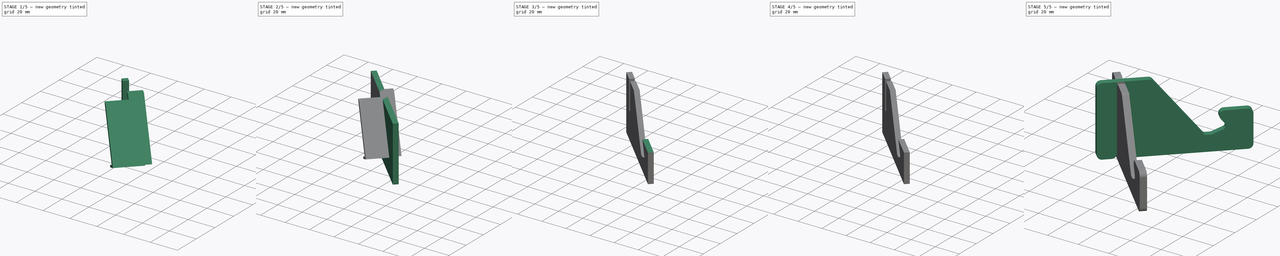
[diagram: build sequence overview — one tinted view per stage of 5, left to right]
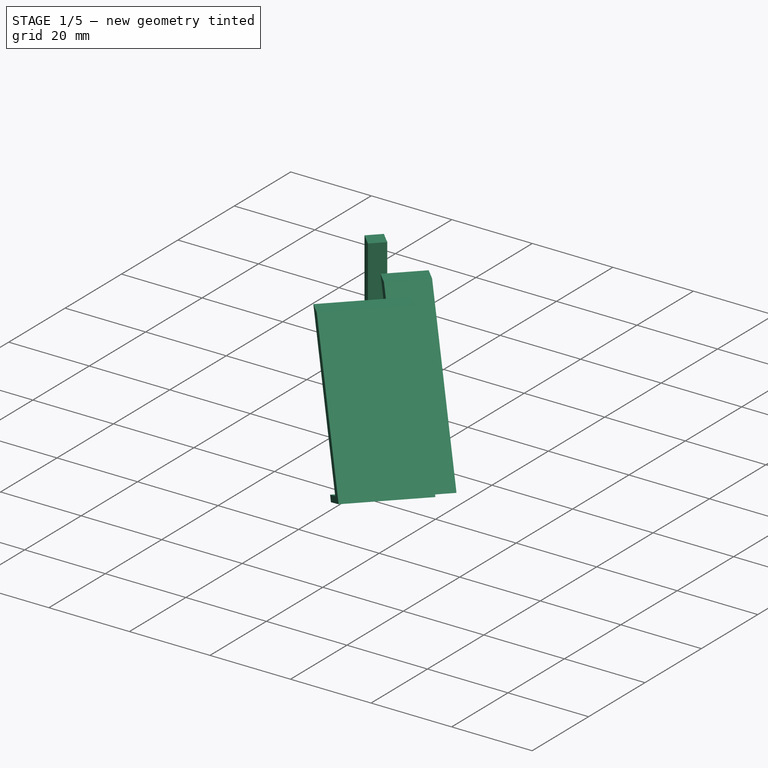
[diagram: stage 1 of 5 — iso view after this stage's code; geometry added in this stage tinted green]
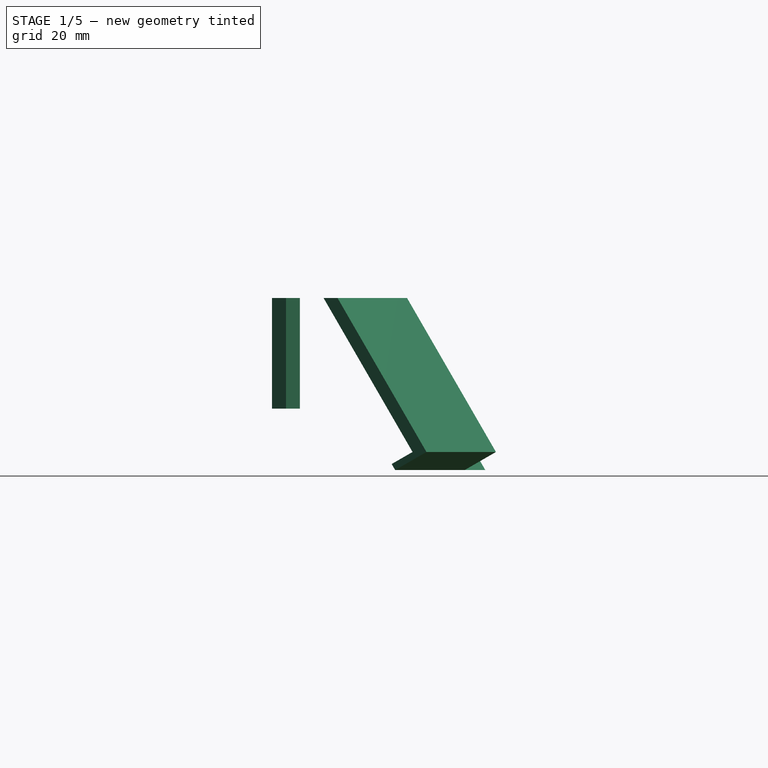
[diagram: stage 1 of 5 — front view after this stage's code; geometry added in this stage tinted green]
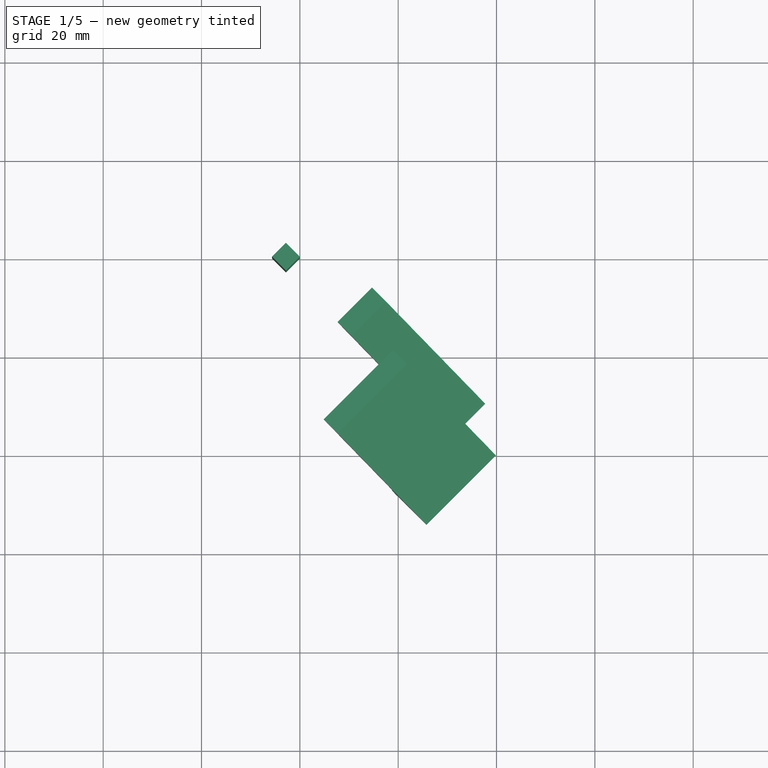
[diagram: stage 1 of 5 — top view after this stage's code; geometry added in this stage tinted green]
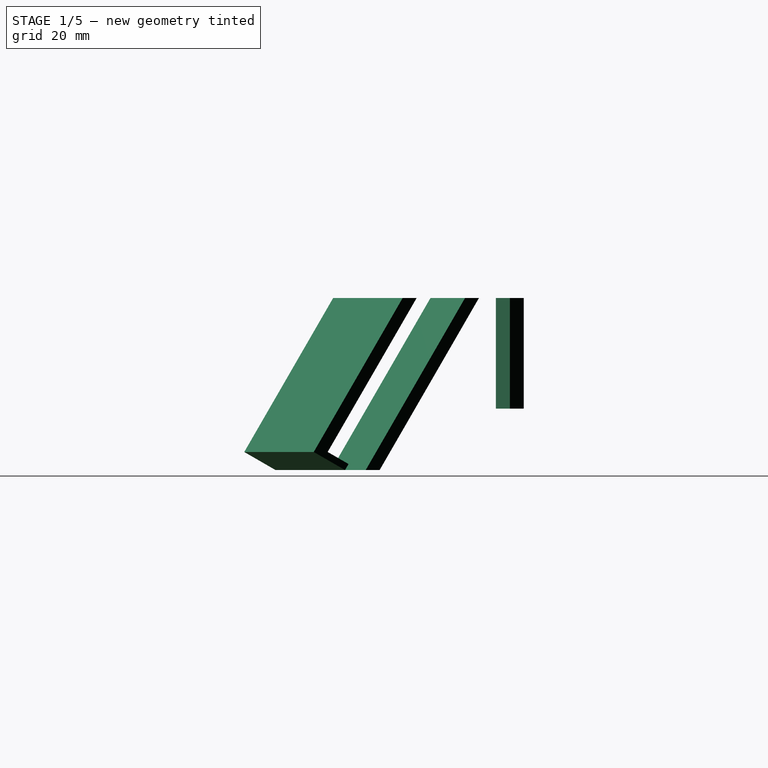
[diagram: stage 1 of 5 — right view after this stage's code; geometry added in this stage tinted green]
FCSTD DOCUMENT  (FreeCAD 0.16RUnknown)
Label: stand
License: All rights reserved
LicenseURL: http://en.wikipedia.org/wiki/All_rights_reserved
objects: Sketcher::SketchObject×6, Part::Cut×6, Part::Extrusion×4, Part::Fillet×4, Part::Part2DObjectPython×3, PartDesign::Pad×2, Part::Feature×2, Spreadsheet::Sheet×1, Part::MultiFuse×1, Part::Mirroring×1
note: 31 computed .brp shape members not serialized (recipe doc carries the construction recipe); baked Part::Feature solids carry a one-line shape summary decoded from their .brp

FEATURE [Sketcher::SketchObject] Sketch001
  expr: Constraints[12] = equations.ply
  sketch-geometry (5):
    g0: LineSegment StartX=0 StartY=0 StartZ=0 EndX=49.4975 EndY=-49.4975 EndZ=0
    g1: LineSegment StartX=49.4975 StartY=-49.4975 StartZ=0 EndX=46.669 EndY=-52.3259 EndZ=0
    g2: LineSegment StartX=46.669 StartY=-52.3259 StartZ=0 EndX=-13.435 EndY=7.77817 EndZ=0
    g3: LineSegment StartX=-13.435 StartY=7.77817 StartZ=0 EndX=-10.6066 EndY=10.6066 EndZ=0
    g4: LineSegment StartX=-10.6066 StartY=10.6066 StartZ=0 EndX=0 EndY=0 EndZ=0
  constraints (14):
    c: Coincident(g-1,g0)
    c: Coincident(g0,g1)
    c: Coincident(g1,g2)
    c: Coincident(g2,g3)
    c: Coincident(g3,g4)
    c: Coincident(g4,g0)
    c: Distance(g0) = 70
    c: Distance(g4) = 15
    c: Perpendicular(g0,g1)
    c: Perpendicular(g3,g4)
    c: Parallel(g3,g1)
    c: Perpendicular(g1,g2)
    c: Distance(g1) = 4
    c: Angle(g0,g-1) = 0.785398
FEATURE [Sketcher::SketchObject] Sketch002  label="edge1_1"
  Placement = pos=(-2.82843,-2.82843,0) rot=(0.862856,-0.357407,-0.357407;1.71777rad)
  sketch-geometry (4):
    g0: LineSegment StartX=18.8209 StartY=35 StartZ=0 EndX=14.8209 EndY=35 EndZ=0
    g1: LineSegment StartX=14.8209 StartY=35 StartZ=0 EndX=43.3983 EndY=-4e-12 EndZ=0
    g2: LineSegment StartX=43.3983 StartY=-4e-12 StartZ=0 EndX=47.3983 EndY=-4e-12 EndZ=0
    g3: LineSegment StartX=47.3983 StartY=-4e-12 StartZ=0 EndX=18.8209 EndY=35 EndZ=0
  constraints (4):
    c: Coincident(g0,g1)
    c: Coincident(g1,g2)
    c: Coincident(g2,g3)
    c: Coincident(g3,g0)
FEATURE [Part::Feature] Face
  shape: bbox 23.04 x 23.04 x 35 mm, 1 faces, 0 solids (baked)
FEATURE [Part::Extrusion] Extrusion
  Base = -> Face
  Dir = (7.03067,7.03067,-5.5e-11)
  Solid = true
FEATURE [Sketcher::SketchObject] Sketch003  label="edge2_1"
  Placement = pos=(0,0,0) rot=(0.281085,0.678598,0.678598;2.59356rad)
  sketch-geometry (6):
    g0: LineSegment StartX=-30.8234 StartY=35 StartZ=0 EndX=-26.8024 EndY=35 EndZ=0
    g1: LineSegment StartX=-26.8024 StartY=35 StartZ=0 EndX=-52.4002 EndY=3.675 EndZ=0
    g2: LineSegment StartX=-52.4002 StartY=3.675 StartZ=0 EndX=-46.3983 EndY=1.22474 EndZ=0
    g3: LineSegment StartX=-46.3983 StartY=1.22474 StartZ=0 EndX=-47.3983 EndY=-4e-12 EndZ=0
    g4: LineSegment StartX=-47.3983 StartY=-4e-12 StartZ=0 EndX=-56.4002 EndY=3.675 EndZ=0
    g5: LineSegment StartX=-56.4002 StartY=3.675 StartZ=0 EndX=-30.8234 EndY=35 EndZ=0
  constraints (7):
    c: Horizontal(g0)
    c: Coincident(g0,g1)
    c: Coincident(g1,g2)
    c: Coincident(g2,g3)
    c: Coincident(g3,g4)
    c: Coincident(g4,g5)
    c: Coincident(g5,g0)
FEATURE [Part::Feature] Face001
  shape: bbox 20.93 x 20.93 x 35 mm, 1 faces, 0 solids (baked)
FEATURE [Part::Extrusion] Extrusion001
  Base = -> Face001
  Dir = (-14.1349,-14.1349,1.3e-11)
  Solid = true
FEATURE [Part::MultiFuse] Fusion
  Shapes = -> [Extrusion001,Extrusion]
FEATURE [Part::Part2DObjectPython] DWire  # Draft 2D object (typed FeaturePython)
  ChamferSize = 0
  Closed = true
  End = (-2.82843,-2.82843,35)
  FilletRadius = 0
  Length = 16
  MakeFace = true
  Points = (4) [(-5.65685,0,35),(-2.82843,2.82843,35),(0,0,35),(-2.82843,-2.82843,35)]
  Start = (-5.65685,0,35)
  Subdivisions = 0
FEATURE [Part::Extrusion] Extrusion005
  Base = -> DWire
  Dir = (0,0,-22.5)
  Solid = true
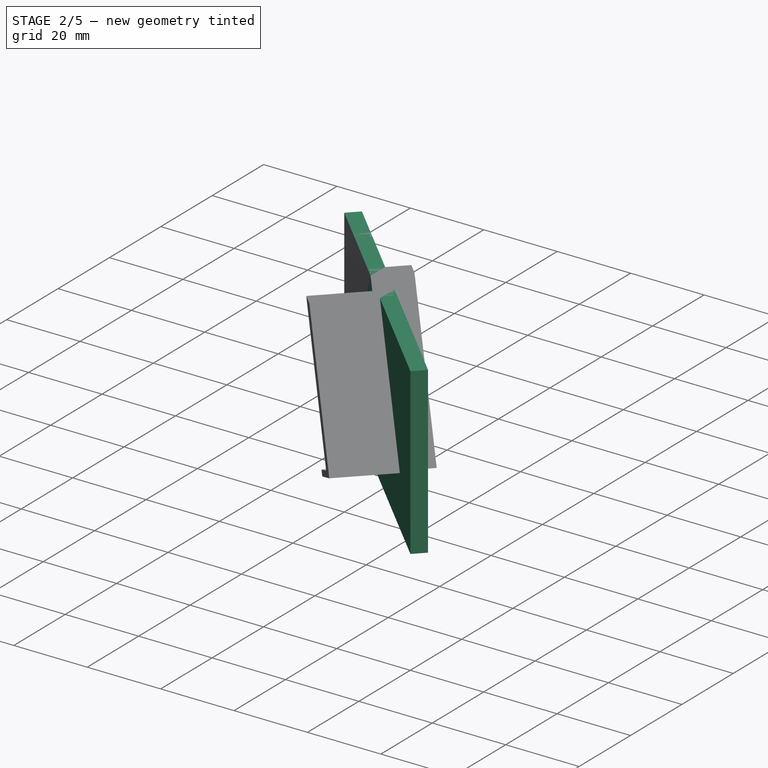
[diagram: stage 2 of 5 — iso view after this stage's code; geometry added in this stage tinted green]
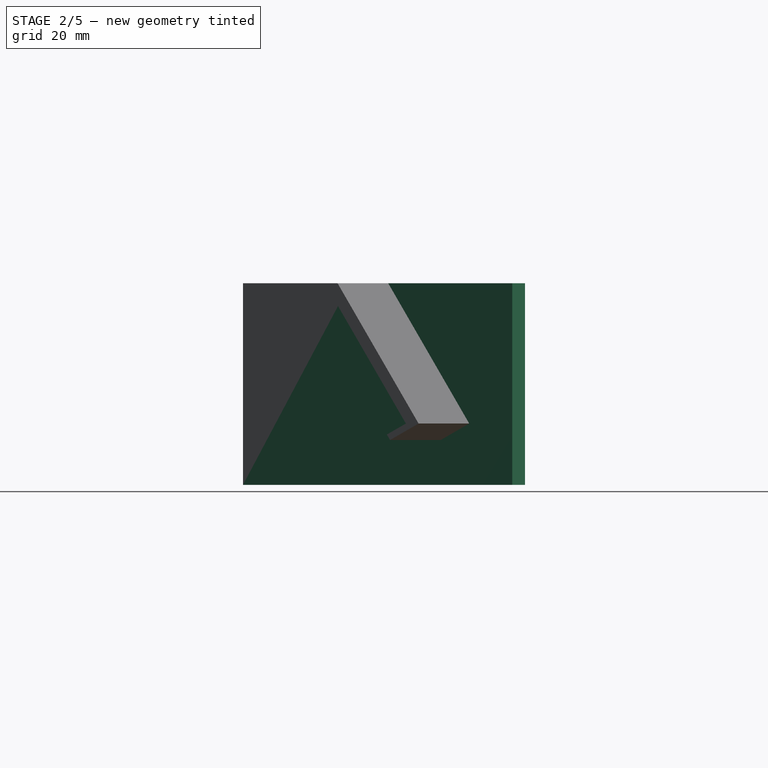
[diagram: stage 2 of 5 — front view after this stage's code; geometry added in this stage tinted green]
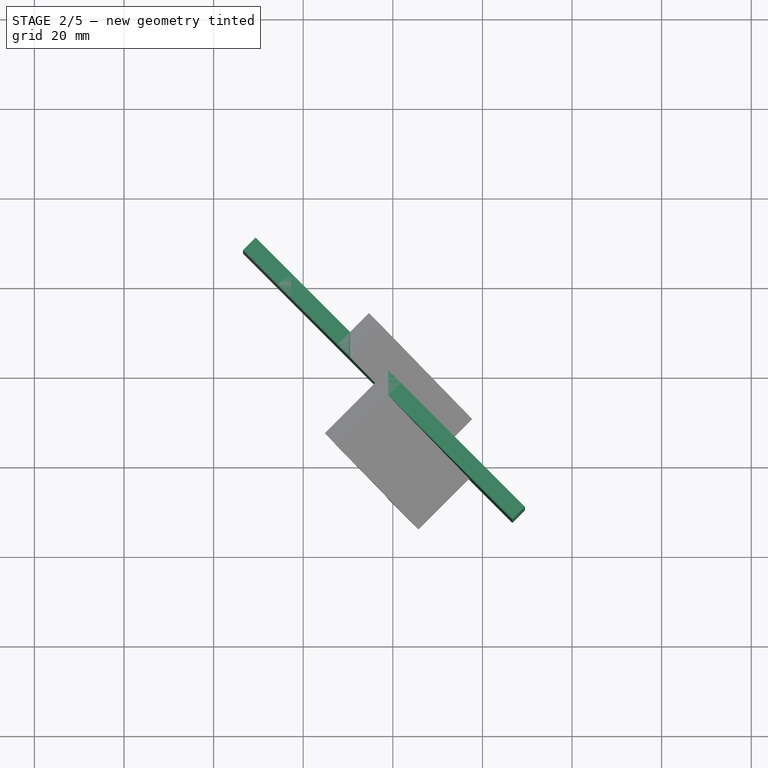
[diagram: stage 2 of 5 — top view after this stage's code; geometry added in this stage tinted green]
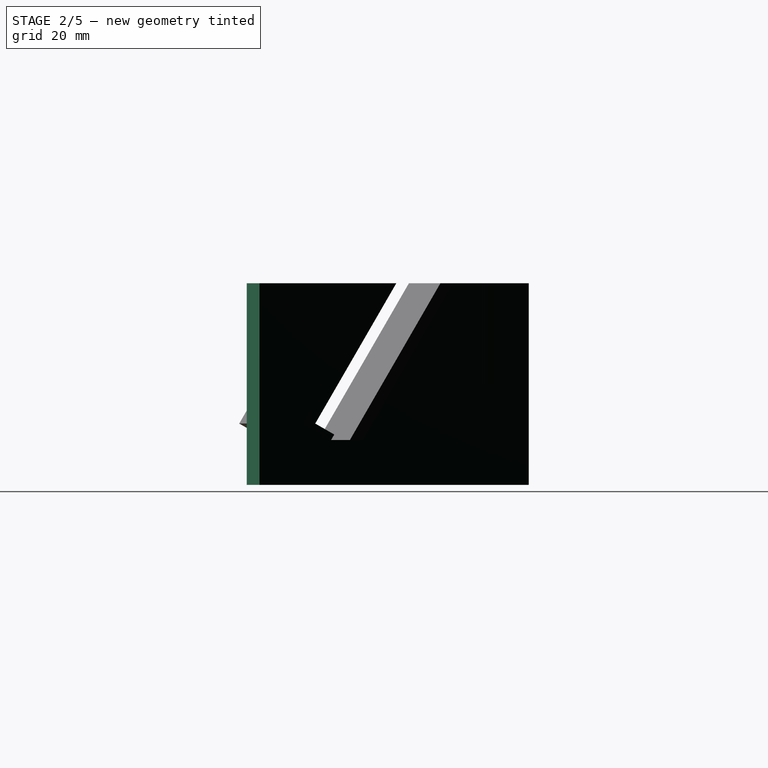
[diagram: stage 2 of 5 — right view after this stage's code; geometry added in this stage tinted green]
FEATURE [Spreadsheet::Sheet] Spreadsheet  label="equations"
  cells = A1=height ; B1=hyt; C1(hyt)=74.7; A2=length; B2=lgt; C2(lgt)=152.7; A3=width; B3=wdt; C3(wdt)=7.35; A4=plywood width; B4=ply; C4(ply)=4
FEATURE [Sketcher::SketchObject] Sketch
  Placement = pos=(15.3436,0,26.5759) rot=(0,1,0;1.0472rad)
  sketch-geometry (8):
    g0: LineSegment StartX=-27.1898 StartY=70.0392 StartZ=0 EndX=27.9226 EndY=70.0392 EndZ=0
    g1: LineSegment StartX=30.6872 StartY=67.2745 StartZ=0 EndX=30.6872 EndY=-67.1224 EndZ=0
    g2: LineSegment StartX=27.6872 StartY=-70.1224 StartZ=0 EndX=-28.2434 EndY=-70.1224 EndZ=0
    g3: LineSegment StartX=-31.4434 StartY=-66.9225 StartZ=0 EndX=-31.4434 EndY=65.7857 EndZ=0
    g4: ArcOfCircle CenterX=-27.1898 CenterY=65.7857 CenterZ=0 NormalX=0 NormalY=0 NormalZ=1 Radius=4.25352 StartAngle=1.5708 EndAngle=3.14159
    g5: ArcOfCircle CenterX=27.9226 CenterY=67.2745 CenterZ=0 NormalX=0 NormalY=0 NormalZ=1 Radius=2.76465 StartAngle=0 EndAngle=1.5708
    g6: ArcOfCircle CenterX=27.6872 CenterY=-67.1224 CenterZ=0 NormalX=0 NormalY=0 NormalZ=1 Radius=3 StartAngle=4.71239 EndAngle=6.28319
    g7: ArcOfCircle CenterX=-28.2434 CenterY=-66.9225 CenterZ=0 NormalX=0 NormalY=0 NormalZ=1 Radius=3.19998 StartAngle=3.14159 EndAngle=4.71239
  constraints (13):
    c: Horizontal(g0)
    c: Horizontal(g2)
    c: Vertical(g1)
    c: Vertical(g3)
    c: Tangent(g0,g4) = 1.5708
    c: Tangent(g3,g4) = 1.5708
    c: Tangent(g0,g5) = 1.5708
    c: Tangent(g1,g5) = 1.5708
    c: Tangent(g1,g6) = 1.5708
    c: Tangent(g2,g6) = 1.5708
    c: Tangent(g2,g7) = 1.5708
    c: Tangent(g3,g7) = 1.5708
    c: Radius(g6) = 3
FEATURE [PartDesign::Pad] Pad  label="mobile"
  Length = 7.35
  Length2 = 100
  Placement = pos=(15.3436,0,26.5759) rot=(0,1,0;1.0472rad)
  Sketch = -> Sketch
  Type = 0
  expr: Length = equations.wdt
FEATURE [PartDesign::Pad] Pad001  label="stand"
  Length = 35
  Length2 = 10
  Sketch = -> Sketch001
  Type = 4
FEATURE [Sketcher::SketchObject] Sketch008
  Placement = pos=(0,0,35) rot=(0,0,1;0rad)
  Support = -> Pad001 [Face7]
  sketch-geometry (4):
    g0: LineSegment StartX=-5.65685 StartY=0 StartZ=0 EndX=-2.82843 EndY=2.82843 EndZ=0
    g1: LineSegment StartX=-2.82843 StartY=2.82843 StartZ=0 EndX=0 EndY=0 EndZ=0
    g2: LineSegment StartX=0 StartY=0 StartZ=0 EndX=-2.82843 EndY=-2.82843 EndZ=0
    g3: LineSegment StartX=-2.82843 StartY=-2.82843 StartZ=0 EndX=-5.65685 EndY=0 EndZ=0
  constraints (5):
    c: Coincident(g0,g1)
    c: Coincident(g1,g-1)
    c: Coincident(g1,g2)
    c: Coincident(g2,g3)
    c: Coincident(g3,g0)
FEATURE [Part::Cut] Cut
  Base = -> Pad001
  Tool = -> Pad
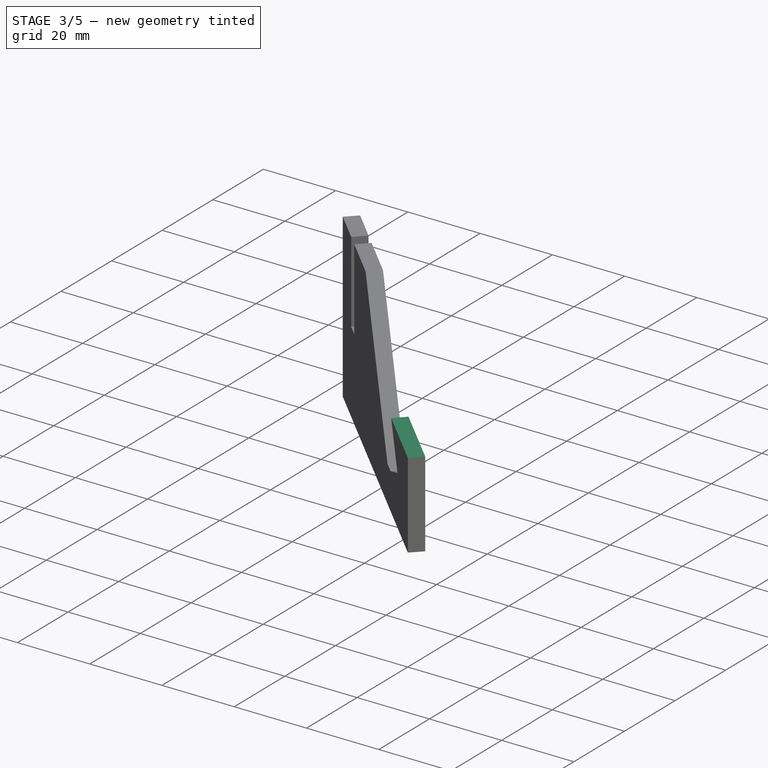
[diagram: stage 3 of 5 — iso view after this stage's code; geometry added in this stage tinted green]
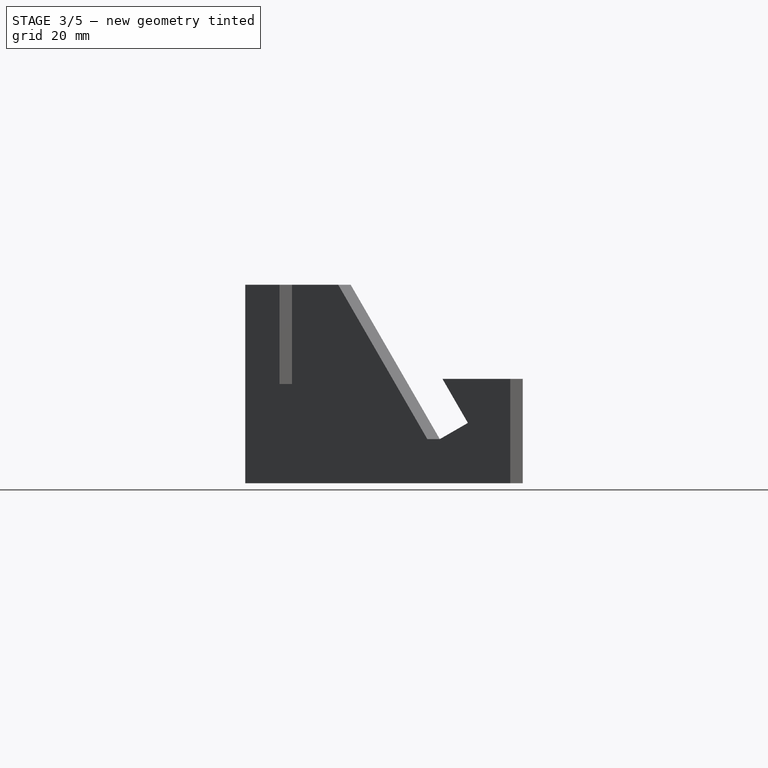
[diagram: stage 3 of 5 — front view after this stage's code; geometry added in this stage tinted green]
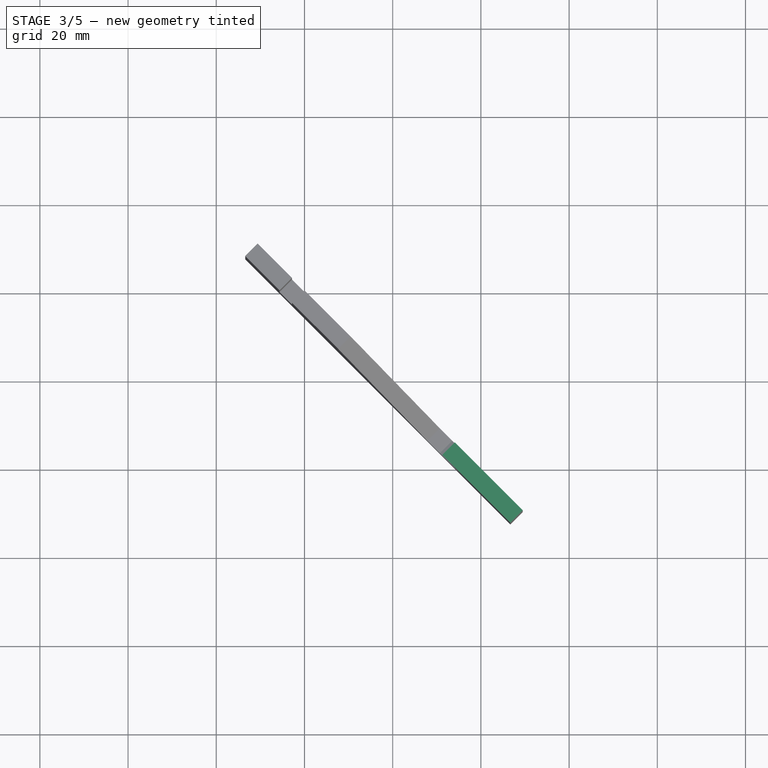
[diagram: stage 3 of 5 — top view after this stage's code; geometry added in this stage tinted green]
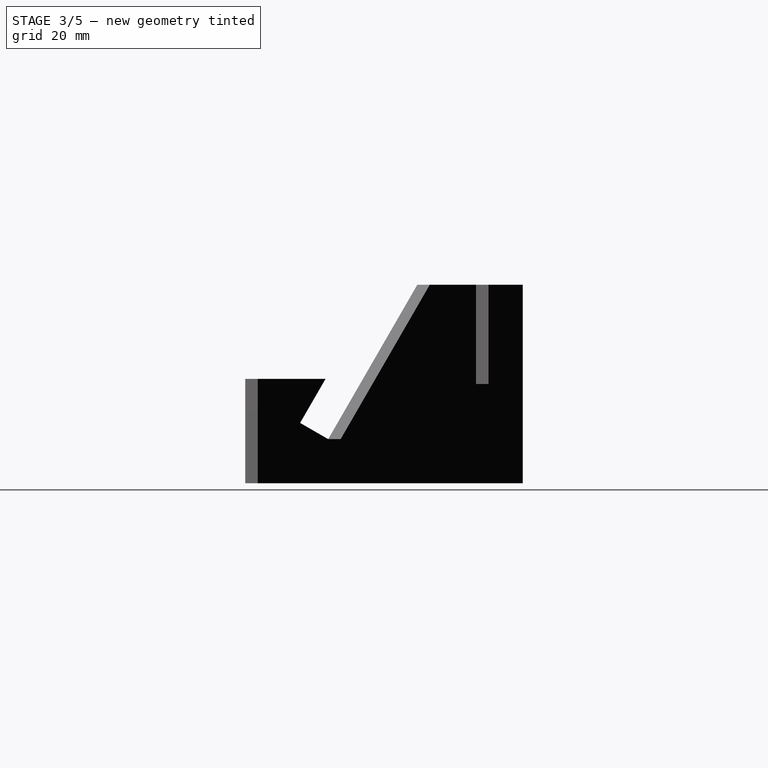
[diagram: stage 3 of 5 — right view after this stage's code; geometry added in this stage tinted green]
FEATURE [Sketcher::SketchObject] Sketch006  label="face1Height"
  Placement = pos=(-2.82843,-2.82843,0) rot=(0.862856,-0.357407,-0.357407;1.71777rad)
  sketch-geometry (4):
    g0: LineSegment StartX=56.4002 StartY=3.675 StartZ=0 EndX=70 EndY=3.675 EndZ=0
    g1: LineSegment StartX=70 StartY=3.675 StartZ=0 EndX=70 EndY=13.675 EndZ=0
    g2: LineSegment StartX=70 StartY=13.675 StartZ=0 EndX=48.2352 EndY=13.675 EndZ=0
    g3: LineSegment StartX=48.2352 StartY=13.675 StartZ=0 EndX=56.4002 EndY=3.675 EndZ=0
  constraints (7):
    c: Coincident(g0,g1)
    c: Coincident(g1,g2)
    c: Horizontal(g2)
    c: Coincident(g2,g3)
    c: Coincident(g3,g0)
    c: Parallel(g2,g0)
    c: DistanceY(g1,g1) = 10
FEATURE [Part::Part2DObjectPython] DWire002  # Draft 2D object (typed FeaturePython)
  ChamferSize = 0
  Closed = true
  End = (53.7401,-59.397,35)
  FilletRadius = 0
  Length = 129.797
  MakeFace = true
  Points = (4) [(53.7401,-59.397,13.675),(31.279,-36.9359,13.675),(18.967,-24.6239,35),(53.7401,-59.397,35)]
  Start = (53.7401,-59.397,13.675)
  Subdivisions = 0
FEATURE [Part::Extrusion] Extrusion004
  Base = -> DWire002
  Dir = (16.9347,16.9347,-9e-12)
  Solid = true
FEATURE [Part::Cut] Cut001
  Base = -> Cut
  Tool = -> Fusion
FEATURE [Part::Cut] Cut002
  Base = -> Cut001
  Tool = -> Extrusion004
FEATURE [Part::Cut] Cut003  label="face1"
  Base = -> Cut002
  Tool = -> Extrusion005
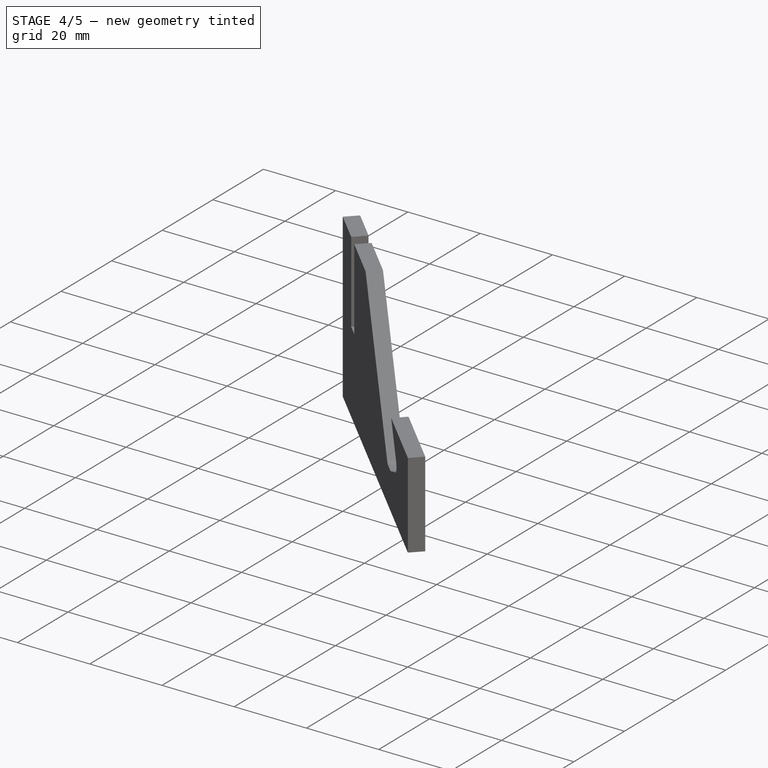
[diagram: stage 4 of 5 — iso view after this stage's code; geometry added in this stage tinted green]
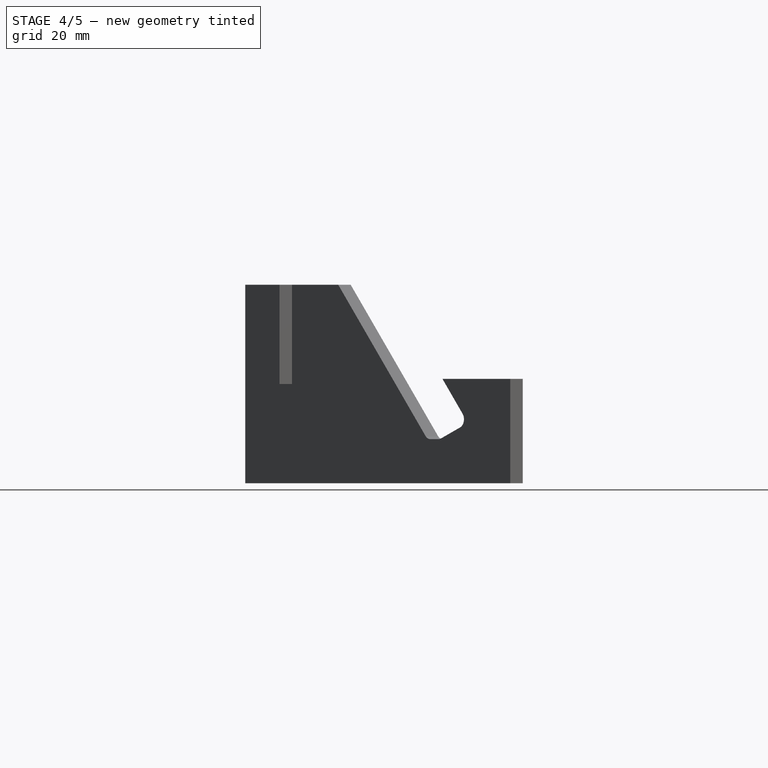
[diagram: stage 4 of 5 — front view after this stage's code; geometry added in this stage tinted green]
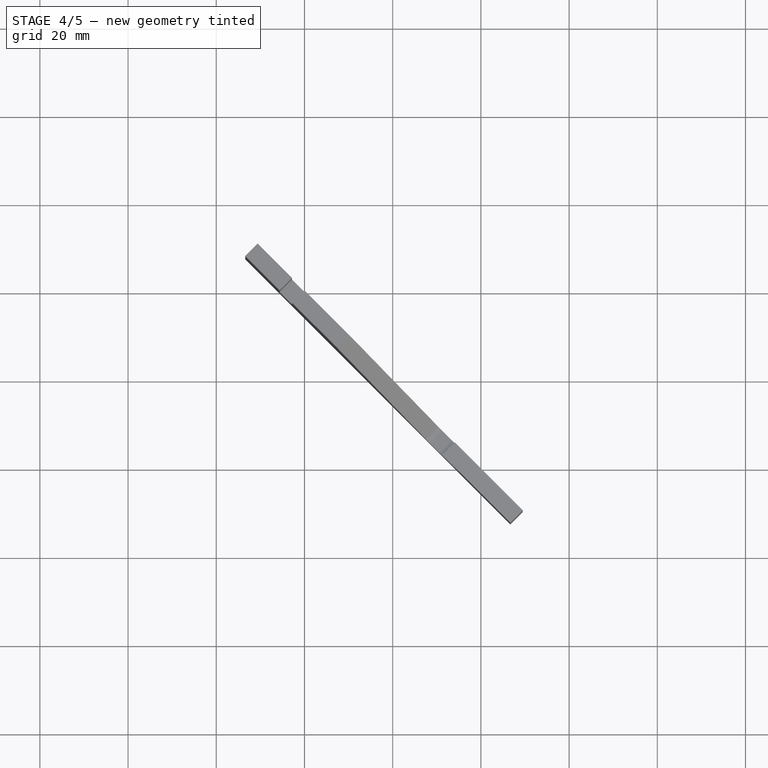
[diagram: stage 4 of 5 — top view after this stage's code; geometry added in this stage tinted green]
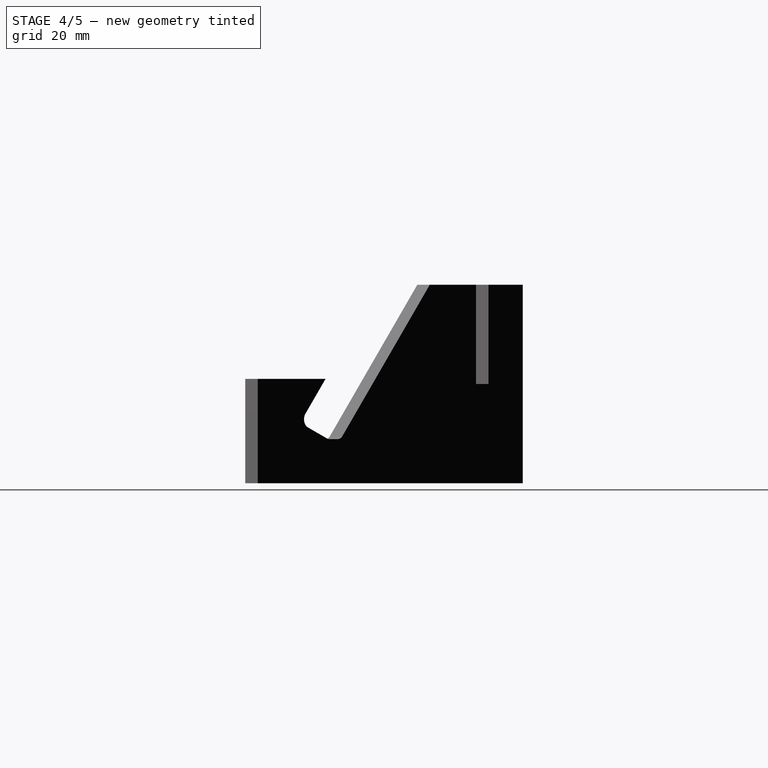
[diagram: stage 4 of 5 — right view after this stage's code; geometry added in this stage tinted green]
FEATURE [Part::Cut] Cut004
  Base = -> Cut002
  Tool = -> Extrusion005
FEATURE [Part::Fillet] Fillet002
  Base = -> Cut003
  Edges = 8 edges r=3: [Edge11,Edge13,Edge20,Edge21,Edge25,Edge27,Edge40,Edge42]
FEATURE [Part::Fillet] Fillet003
  Base = -> Fillet002
  Edges = 3 edges r=2: [Edge46,Edge49,Edge50]
FEATURE [Part::Part2DObjectPython] Shape2DView  # Draft 2D object (typed FeaturePython)
  Base = -> Fillet003
  FaceNumbers = [19]
  HiddenLines = false
  Projection = (-0.707107,-0.707107,-1.19209e-07)
  ProjectionMode = 0
  SegmentLength = 0.05
  Tessellation = false
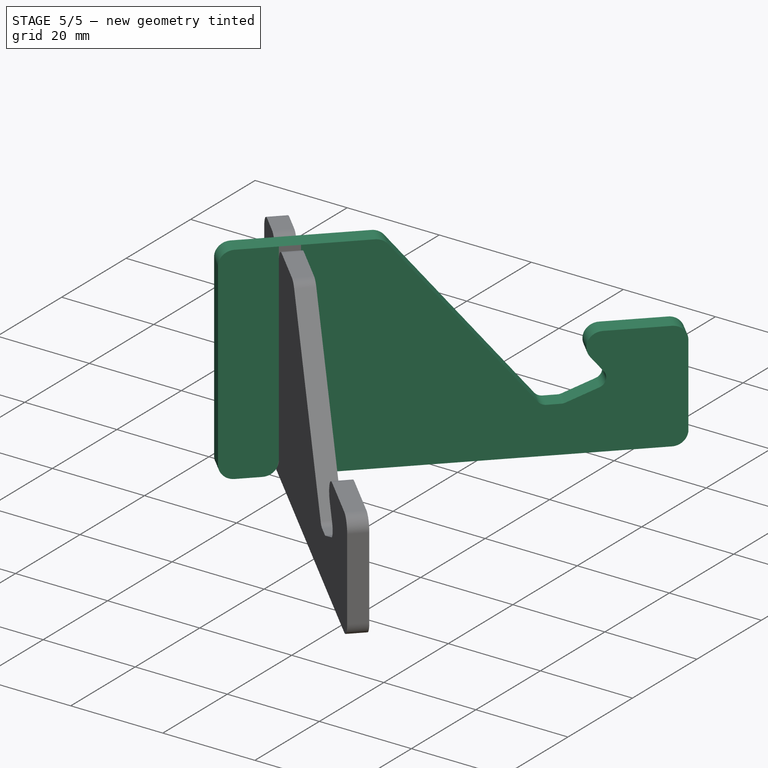
[diagram: stage 5 of 5 — iso view after this stage's code; geometry added in this stage tinted green]
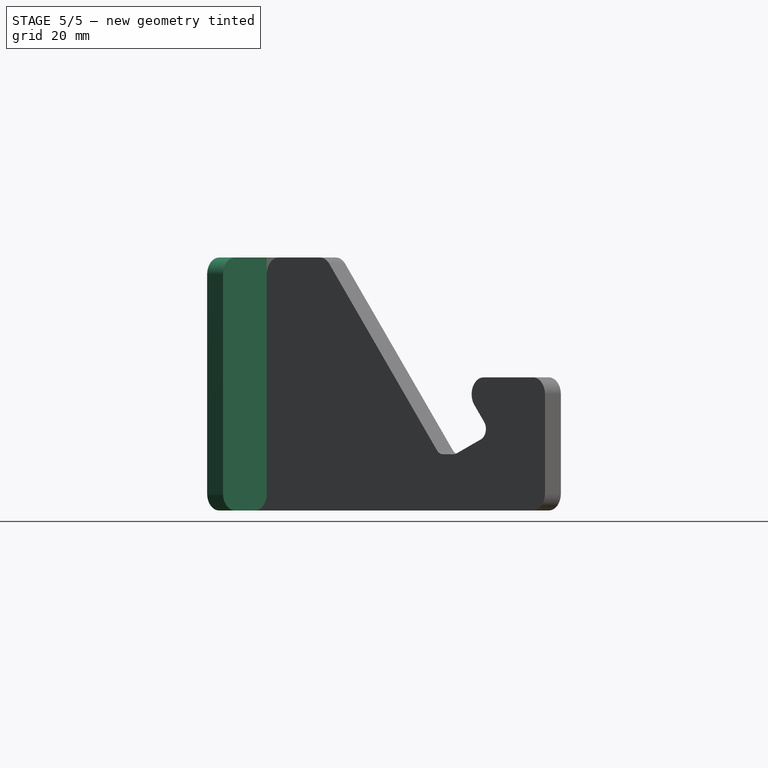
[diagram: stage 5 of 5 — front view after this stage's code; geometry added in this stage tinted green]
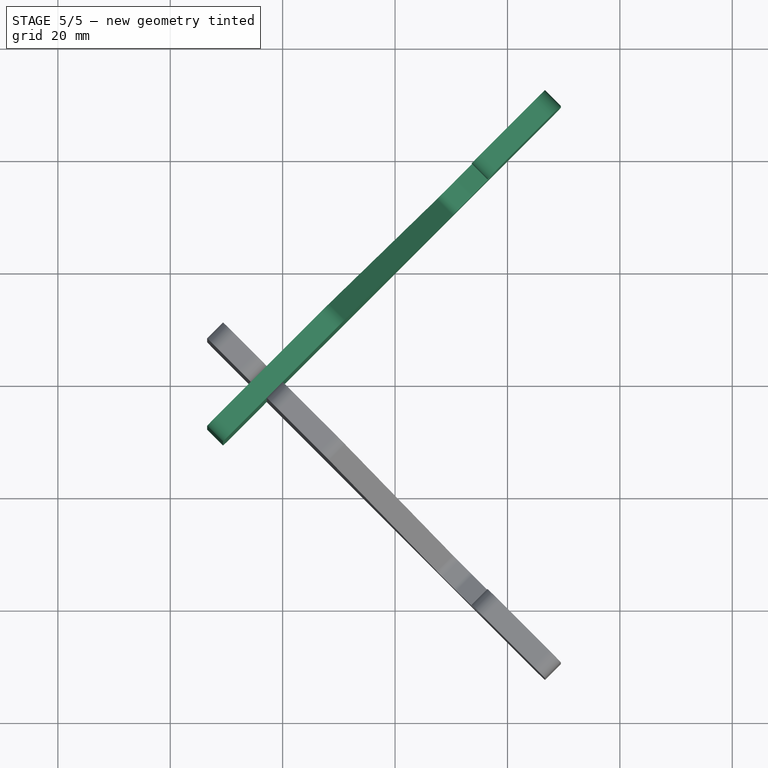
[diagram: stage 5 of 5 — top view after this stage's code; geometry added in this stage tinted green]
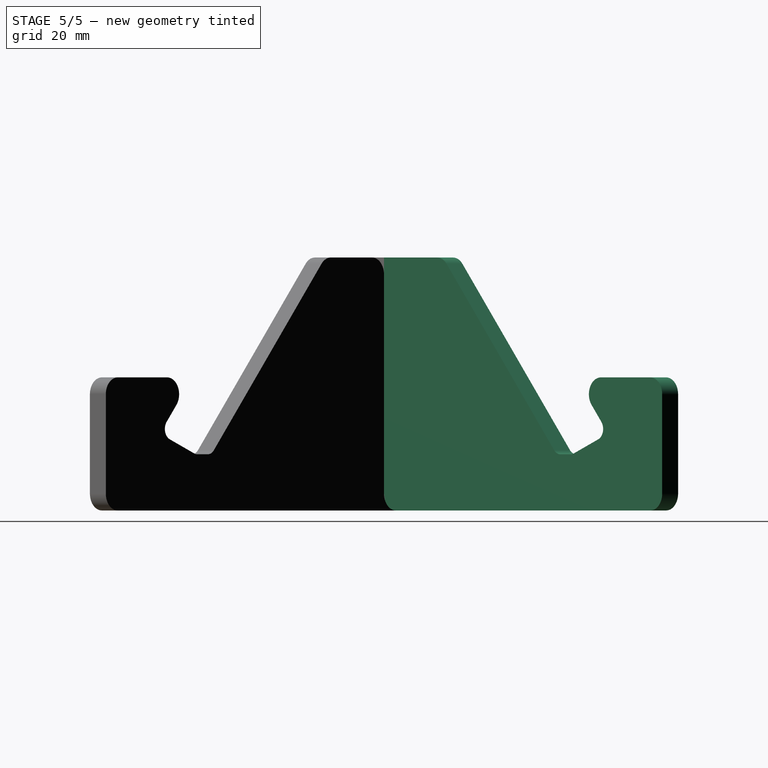
[diagram: stage 5 of 5 — right view after this stage's code; geometry added in this stage tinted green]
FEATURE [Part::Mirroring] Part__Mirroring  label="Cut002 (Mirror #1)"
  Base = (0,0,0)
  Normal = (0,1,0)
  Source = -> Cut002
FEATURE [Part::Cut] Cut005  label="face2"
  Base = -> Part__Mirroring
  Tool = -> Cut004
FEATURE [Part::Fillet] Fillet
  Base = -> Cut005
  Edges = 8 edges r=3: [Edge11,Edge13,Edge17,Edge22,Edge23,Edge28,Edge44,Edge48]
FEATURE [Part::Fillet] Fillet001
  Base = -> Fillet
  Edges = 3 edges r=2: [Edge45,Edge46,Edge49]
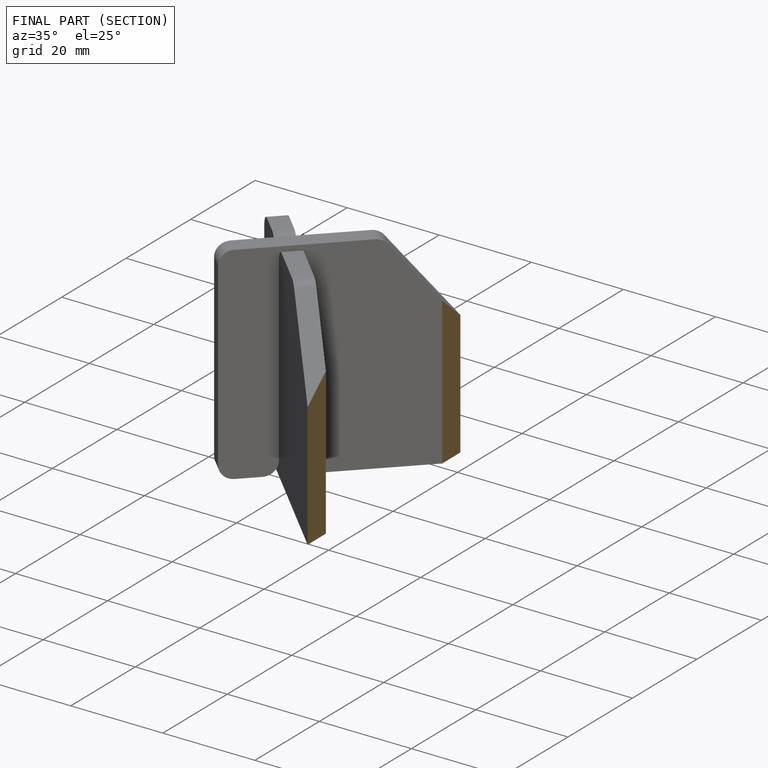
[diagram: finished part — half-section view (interior)]
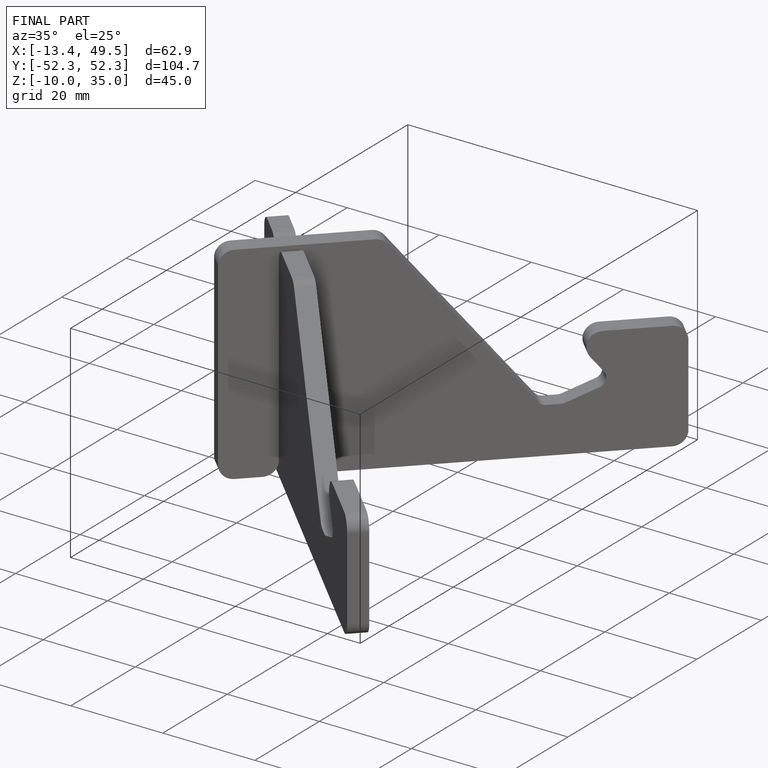
[diagram: finished part — iso view with bounding-box wireframe]
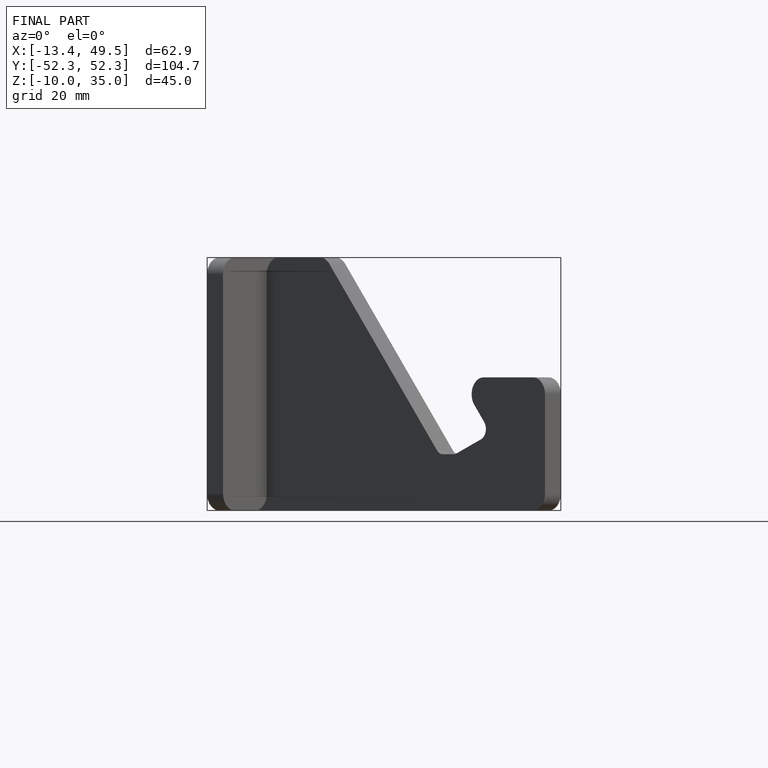
[diagram: finished part — front view with bounding-box wireframe]
